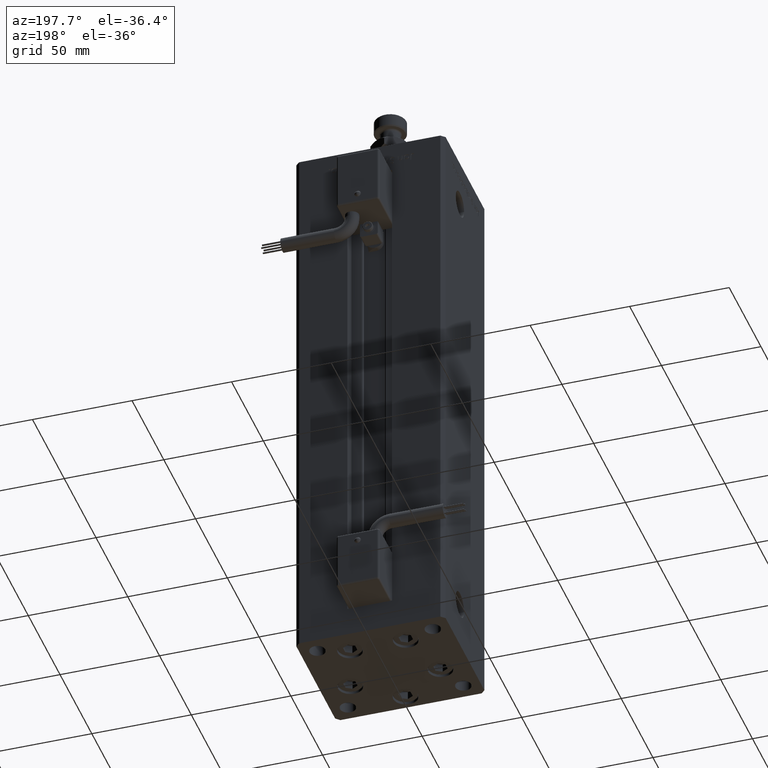
[diagram: clean part render]
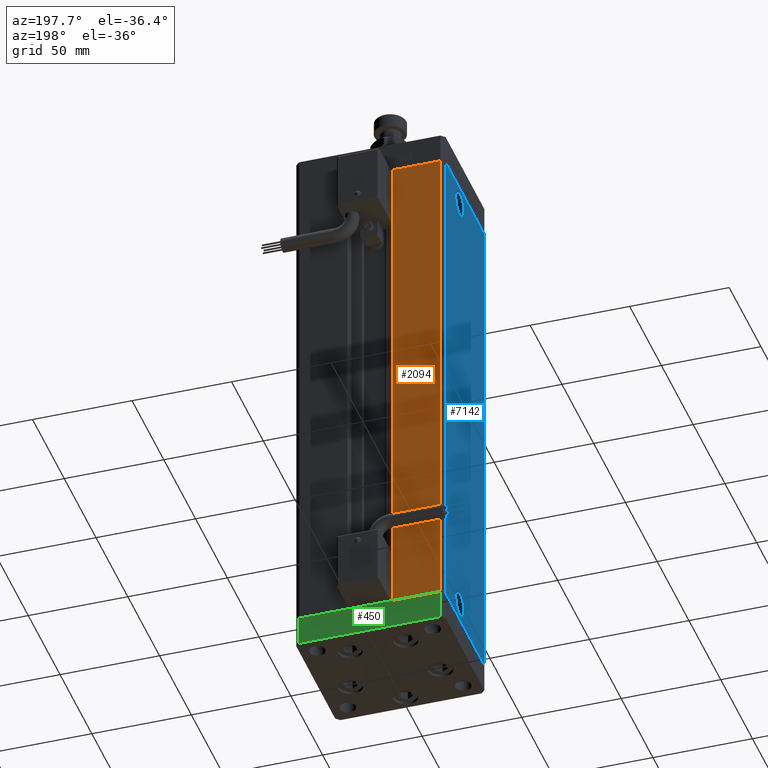
[diagram: same view with three faces highlighted in distinct colors, each labeled with its STEP entity id]
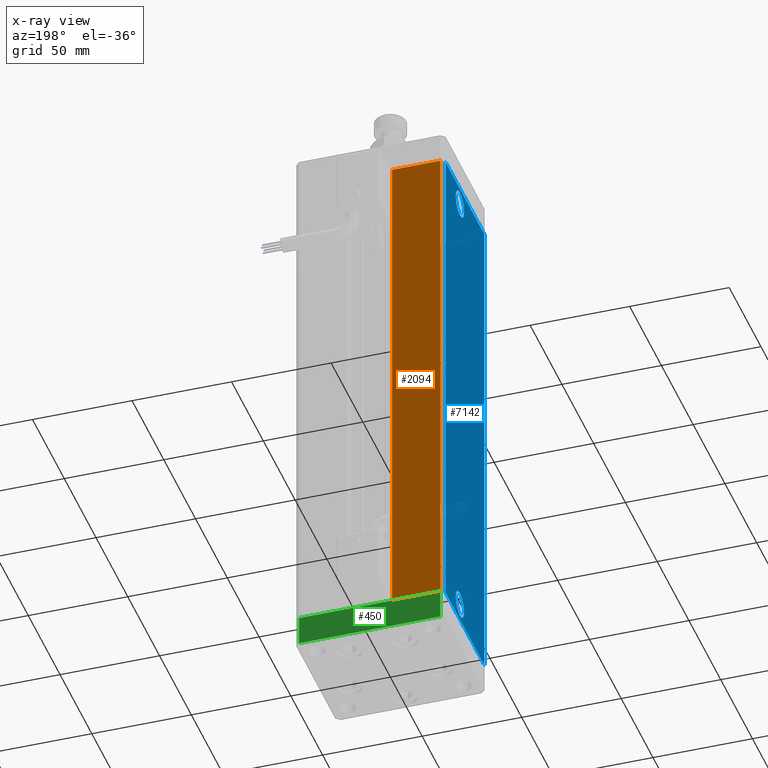
[diagram: x-ray of the same camera — body ghosted, the three highlighted faces saturated]
A machine part, auxiliary view with three faces highlighted in distinct colors.
The next image is the same camera in x-ray (body ghosted, the three faces saturated) — at least one of them is partly hidden behind the body in this view.
Their STEP definitions:

[orange] entity #2094 — the highlighted planar face has unit normal (0, -1, 0).
#1440 = CARTESIAN_POINT ( 'NONE',  ( -11.25000000000000178, 32.49999999999999289, 256.0000000000000000 ) ) ;
#2094 = ADVANCED_FACE ( 'NONE', ( #19256 ), #19542, .F. ) ;
#3200 = CARTESIAN_POINT ( 'NONE',  ( -35.50000000000000000, 32.49999999999999289, 256.0000000000000000 ) ) ;
#5956 = DIRECTION ( 'NONE',  ( -0.000000000000000000, -0.000000000000000000, -1.000000000000000000 ) ) ;
#6423 = VECTOR ( 'NONE', #22951, 1000.000000000000000 ) ;
#10554 = CARTESIAN_POINT ( 'NONE',  ( -35.50000000000000000, 32.49999999999999289, 256.0000000000000000 ) ) ;
#13209 = DIRECTION ( 'NONE',  ( -0.000000000000000000, -0.000000000000000000, 1.000000000000000000 ) ) ;
#15249 = CARTESIAN_POINT ( 'NONE',  ( -11.25000000000000178, 32.49999999999999289, 256.0000000000000000 ) ) ;
#15728 = EDGE_CURVE ( 'NONE', #21089, #41469, #41689, .T. ) ;
#15921 = EDGE_CURVE ( 'NONE', #50577, #41469, #45079, .T. ) ;
#18144 = ORIENTED_EDGE ( 'NONE', *, *, #21131, .T. ) ;
#19256 = FACE_OUTER_BOUND ( 'NONE', #53861, .T. ) ;
#19542 = PLANE ( 'NONE',  #25518 ) ;
#19828 = CARTESIAN_POINT ( 'NONE',  ( -11.25000000000000178, 32.49999999999999289, 0.000000000000000000 ) ) ;
#20140 = VECTOR ( 'NONE', #13209, 1000.000000000000000 ) ;
#21089 = VERTEX_POINT ( 'NONE', #48779 ) ;
#21131 = EDGE_CURVE ( 'NONE', #21089, #42439, #23764, .T. ) ;
#21182 = EDGE_CURVE ( 'NONE', #50577, #42439, #22627, .T. ) ;
#22185 = ORIENTED_EDGE ( 'NONE', *, *, #15728, .F. ) ;
#22627 = LINE ( 'NONE', #10554, #39511 ) ;
#22951 = DIRECTION ( 'NONE',  ( 1.000000000000000000, 0.000000000000000000, 0.000000000000000000 ) ) ;
#23764 = LINE ( 'NONE', #35858, #35043 ) ;
#25518 = AXIS2_PLACEMENT_3D ( 'NONE', #15249, #32781, #27334 ) ;
#27334 = DIRECTION ( 'NONE',  ( 0.000000000000000000, -0.000000000000000000, -1.000000000000000000 ) ) ;
#27555 = CARTESIAN_POINT ( 'NONE',  ( -35.50000000000000000, 32.49999999999999289, 0.000000000000000000 ) ) ;
#31281 = CARTESIAN_POINT ( 'NONE',  ( -11.25000000000000178, 32.49999999999999289, 256.0000000000000000 ) ) ;
#32781 = DIRECTION ( 'NONE',  ( 0.000000000000000000, -1.000000000000000000, 0.000000000000000000 ) ) ;
#35043 = VECTOR ( 'NONE', #50188, 1000.000000000000000 ) ;
#35858 = CARTESIAN_POINT ( 'NONE',  ( -11.25000000000000178, 32.49999999999999289, 0.000000000000000000 ) ) ;
#39511 = VECTOR ( 'NONE', #5956, 1000.000000000000000 ) ;
#41171 = ORIENTED_EDGE ( 'NONE', *, *, #21182, .F. ) ;
#41469 = VERTEX_POINT ( 'NONE', #1440 ) ;
#41689 = LINE ( 'NONE', #19828, #20140 ) ;
#42439 = VERTEX_POINT ( 'NONE', #27555 ) ;
#45079 = LINE ( 'NONE', #31281, #6423 ) ;
#46882 = ORIENTED_EDGE ( 'NONE', *, *, #15921, .T. ) ;
#48779 = CARTESIAN_POINT ( 'NONE',  ( -11.25000000000000178, 32.49999999999999289, 0.000000000000000000 ) ) ;
#50188 = DIRECTION ( 'NONE',  ( -1.000000000000000000, 0.000000000000000000, 0.000000000000000000 ) ) ;
#50577 = VERTEX_POINT ( 'NONE', #3200 ) ;
#53861 = EDGE_LOOP ( 'NONE', ( #46882, #22185, #18144, #41171 ) ) ;

[blue] entity #7142 — the highlighted planar face has unit normal (1, 0, 0).
#283 = VERTEX_POINT ( 'NONE', #27177 ) ;
#1412 = VERTEX_POINT ( 'NONE', #24355 ) ;
#6004 = DIRECTION ( 'NONE',  ( -2.275047181608927644E-16, 1.000000000000000000, 0.000000000000000000 ) ) ;
#6698 = CARTESIAN_POINT ( 'NONE',  ( -37.50000000000000000, 7.999999999999991118, 9.000000000000000000 ) ) ;
#7142 = ADVANCED_FACE ( 'NONE', ( #10601, #16036, #15750 ), #28414, .F. ) ;
#8335 = CARTESIAN_POINT ( 'NONE',  ( -37.50000000000000000, 7.999999999999991118, 247.0000000000000000 ) ) ;
#8548 = DIRECTION ( 'NONE',  ( 0.000000000000000000, -1.000000000000000000, 0.000000000000000000 ) ) ;
#10601 = FACE_BOUND ( 'NONE', #35789, .T. ) ;
#11441 = CARTESIAN_POINT ( 'NONE',  ( -37.50000000000000000, 7.999999999999991118, 247.0000000000000000 ) ) ;
#12119 = VECTOR ( 'NONE', #35371, 1000.000000000000000 ) ;
#15296 = LINE ( 'NONE', #23917, #20817 ) ;
#15750 = FACE_OUTER_BOUND ( 'NONE', #26509, .T. ) ;
#16036 = FACE_BOUND ( 'NONE', #22271, .T. ) ;
#16501 = VERTEX_POINT ( 'NONE', #44872 ) ;
#16649 = DIRECTION ( 'NONE',  ( 0.000000000000000000, -1.000000000000000000, 0.000000000000000000 ) ) ;
#16693 = CIRCLE ( 'NONE', #22225, 6.580000000000003624 ) ;
#18263 = DIRECTION ( 'NONE',  ( -1.000000000000000000, -2.275047181608927644E-16, 0.000000000000000000 ) ) ;
#19143 = VERTEX_POINT ( 'NONE', #22072 ) ;
#19226 = CARTESIAN_POINT ( 'NONE',  ( -37.50000000000000711, 30.50000000000000000, 0.000000000000000000 ) ) ;
#19688 = ORIENTED_EDGE ( 'NONE', *, *, #24877, .F. ) ;
#20098 = CARTESIAN_POINT ( 'NONE',  ( -37.49999999999999289, -30.50000000000000000, 256.0000000000000000 ) ) ;
#20279 = EDGE_CURVE ( 'NONE', #47698, #49827, #55170, .T. ) ;
#20817 = VECTOR ( 'NONE', #49492, 1000.000000000000000 ) ;
#20935 = EDGE_CURVE ( 'NONE', #25577, #283, #49703, .T. ) ;
#21163 = CIRCLE ( 'NONE', #48688, 6.580000000000044480 ) ;
#22072 = CARTESIAN_POINT ( 'NONE',  ( -37.50000000000000000, 14.58000000000003560, 247.0000000000000000 ) ) ;
#22225 = AXIS2_PLACEMENT_3D ( 'NONE', #6698, #24206, #50347 ) ;
#22271 = EDGE_LOOP ( 'NONE', ( #55339, #49060 ) ) ;
#22429 = LINE ( 'NONE', #48302, #12119 ) ;
#22586 = EDGE_CURVE ( 'NONE', #19143, #44809, #21163, .T. ) ;
#22890 = EDGE_CURVE ( 'NONE', #44809, #19143, #53270, .T. ) ;
#23917 = CARTESIAN_POINT ( 'NONE',  ( -37.50000000000000711, 30.50000000000000000, 256.0000000000000000 ) ) ;
#24206 = DIRECTION ( 'NONE',  ( -1.000000000000000000, -2.275047181608927644E-16, 0.000000000000000000 ) ) ;
#24355 = CARTESIAN_POINT ( 'NONE',  ( -37.50000000000000711, 30.50000000000000000, 256.0000000000000000 ) ) ;
#24694 = EDGE_CURVE ( 'NONE', #1412, #25577, #22429, .T. ) ;
#24706 = CARTESIAN_POINT ( 'NONE',  ( -37.50000000000000000, 1.419999999999988161, 9.000000000000000000 ) ) ;
#24877 = EDGE_CURVE ( 'NONE', #16501, #283, #50559, .T. ) ;
#25178 = CARTESIAN_POINT ( 'NONE',  ( -37.50000000000000000, 1.419999999999947304, 247.0000000000000000 ) ) ;
#25577 = VERTEX_POINT ( 'NONE', #36576 ) ;
#25845 = DIRECTION ( 'NONE',  ( -1.000000000000000000, -2.275047181608927644E-16, 0.000000000000000000 ) ) ;
#26509 = EDGE_LOOP ( 'NONE', ( #26816, #19688, #56195, #29703 ) ) ;
#26816 = ORIENTED_EDGE ( 'NONE', *, *, #20935, .T. ) ;
#27177 = CARTESIAN_POINT ( 'NONE',  ( -37.49999999999999289, -30.50000000000000000, 0.000000000000000000 ) ) ;
#28414 = PLANE ( 'NONE',  #32797 ) ;
#29471 = ORIENTED_EDGE ( 'NONE', *, *, #39031, .F. ) ;
#29703 = ORIENTED_EDGE ( 'NONE', *, *, #24694, .T. ) ;
#30405 = AXIS2_PLACEMENT_3D ( 'NONE', #47890, #18263, #8548 ) ;
#32182 = DIRECTION ( 'NONE',  ( 2.275047181608927644E-16, -1.000000000000000000, 0.000000000000000000 ) ) ;
#32797 = AXIS2_PLACEMENT_3D ( 'NONE', #45937, #50805, #6004 ) ;
#34394 = DIRECTION ( 'NONE',  ( -1.000000000000000000, -2.275047181608927644E-16, 0.000000000000000000 ) ) ;
#35371 = DIRECTION ( 'NONE',  ( -0.000000000000000000, -0.000000000000000000, -1.000000000000000000 ) ) ;
#35789 = EDGE_LOOP ( 'NONE', ( #36857, #29471 ) ) ;
#36576 = CARTESIAN_POINT ( 'NONE',  ( -37.50000000000000711, 30.50000000000000000, 0.000000000000000000 ) ) ;
#36857 = ORIENTED_EDGE ( 'NONE', *, *, #20279, .F. ) ;
#37715 = AXIS2_PLACEMENT_3D ( 'NONE', #11441, #34394, #51063 ) ;
#39031 = EDGE_CURVE ( 'NONE', #49827, #47698, #16693, .T. ) ;
#39597 = VECTOR ( 'NONE', #32182, 1000.000000000000000 ) ;
#41951 = DIRECTION ( 'NONE',  ( -0.000000000000000000, -0.000000000000000000, -1.000000000000000000 ) ) ;
#44809 = VERTEX_POINT ( 'NONE', #25178 ) ;
#44872 = CARTESIAN_POINT ( 'NONE',  ( -37.49999999999999289, -30.50000000000000000, 256.0000000000000000 ) ) ;
#45130 = VECTOR ( 'NONE', #41951, 1000.000000000000000 ) ;
#45937 = CARTESIAN_POINT ( 'NONE',  ( -37.50000000000000711, 30.50000000000000000, 256.0000000000000000 ) ) ;
#47698 = VERTEX_POINT ( 'NONE', #24706 ) ;
#47890 = CARTESIAN_POINT ( 'NONE',  ( -37.50000000000000000, 7.999999999999991118, 9.000000000000000000 ) ) ;
#48120 = CARTESIAN_POINT ( 'NONE',  ( -37.50000000000000000, 14.57999999999999652, 9.000000000000000000 ) ) ;
#48302 = CARTESIAN_POINT ( 'NONE',  ( -37.50000000000000711, 30.50000000000000000, 256.0000000000000000 ) ) ;
#48688 = AXIS2_PLACEMENT_3D ( 'NONE', #8335, #25845, #16649 ) ;
#49060 = ORIENTED_EDGE ( 'NONE', *, *, #22586, .F. ) ;
#49492 = DIRECTION ( 'NONE',  ( 2.275047181608927644E-16, -1.000000000000000000, 0.000000000000000000 ) ) ;
#49703 = LINE ( 'NONE', #19226, #39597 ) ;
#49827 = VERTEX_POINT ( 'NONE', #48120 ) ;
#50347 = DIRECTION ( 'NONE',  ( 0.000000000000000000, -1.000000000000000000, 0.000000000000000000 ) ) ;
#50559 = LINE ( 'NONE', #20098, #45130 ) ;
#50805 = DIRECTION ( 'NONE',  ( 1.000000000000000000, 2.275047181608927644E-16, -0.000000000000000000 ) ) ;
#51063 = DIRECTION ( 'NONE',  ( 0.000000000000000000, -1.000000000000000000, 0.000000000000000000 ) ) ;
#51353 = EDGE_CURVE ( 'NONE', #1412, #16501, #15296, .T. ) ;
#53270 = CIRCLE ( 'NONE', #37715, 6.580000000000044480 ) ;
#55170 = CIRCLE ( 'NONE', #30405, 6.580000000000003624 ) ;
#55339 = ORIENTED_EDGE ( 'NONE', *, *, #22890, .F. ) ;
#56195 = ORIENTED_EDGE ( 'NONE', *, *, #51353, .F. ) ;

[green] entity #450 — the highlighted planar face has unit normal (0, 1, 0).
#450 = ADVANCED_FACE ( 'NONE', ( #54716 ), #41239, .T. ) ;
#1005 = DIRECTION ( 'NONE',  ( -1.954618001100629052E-16, 1.000000000000000000, 0.000000000000000000 ) ) ;
#1232 = VERTEX_POINT ( 'NONE', #16653 ) ;
#2603 = VECTOR ( 'NONE', #28056, 1000.000000000000000 ) ;
#2993 = VECTOR ( 'NONE', #47321, 1000.000000000000000 ) ;
#3516 = ORIENTED_EDGE ( 'NONE', *, *, #55603, .F. ) ;
#10539 = DIRECTION ( 'NONE',  ( 0.000000000000000000, 0.000000000000000000, 1.000000000000000000 ) ) ;
#12842 = EDGE_CURVE ( 'NONE', #16037, #15841, #31516, .T. ) ;
#13059 = VERTEX_POINT ( 'NONE', #31170 ) ;
#14244 = CARTESIAN_POINT ( 'NONE',  ( 35.49999999999992184, 32.50000000000000711, -15.00000000000000000 ) ) ;
#14494 = ORIENTED_EDGE ( 'NONE', *, *, #27230, .T. ) ;
#15841 = VERTEX_POINT ( 'NONE', #25575 ) ;
#16037 = VERTEX_POINT ( 'NONE', #43601 ) ;
#16653 = CARTESIAN_POINT ( 'NONE',  ( 35.49999999999992184, 32.50000000000000711, 0.000000000000000000 ) ) ;
#18851 = LINE ( 'NONE', #32651, #46270 ) ;
#22561 = EDGE_LOOP ( 'NONE', ( #3516, #42269, #42018, #14494 ) ) ;
#23113 = CARTESIAN_POINT ( 'NONE',  ( 35.49999999999992184, 32.50000000000000711, 0.000000000000000000 ) ) ;
#25575 = CARTESIAN_POINT ( 'NONE',  ( -35.50000000000002842, 32.49999999999999289, -15.00000000000000000 ) ) ;
#27151 = DIRECTION ( 'NONE',  ( -1.000000000000000000, -1.954618001100629052E-16, 0.000000000000000000 ) ) ;
#27230 = EDGE_CURVE ( 'NONE', #15841, #13059, #43027, .T. ) ;
#27434 = LINE ( 'NONE', #23113, #42853 ) ;
#28056 = DIRECTION ( 'NONE',  ( -1.000000000000000000, -1.954618001100629052E-16, 0.000000000000000000 ) ) ;
#28309 = DIRECTION ( 'NONE',  ( -1.000000000000000000, -1.954618001100629052E-16, 0.000000000000000000 ) ) ;
#29810 = CARTESIAN_POINT ( 'NONE',  ( -35.50000000000002842, 32.49999999999999289, -15.00000000000000000 ) ) ;
#31170 = CARTESIAN_POINT ( 'NONE',  ( -35.50000000000002842, 32.49999999999999289, 0.000000000000000000 ) ) ;
#31516 = LINE ( 'NONE', #49045, #2603 ) ;
#32651 = CARTESIAN_POINT ( 'NONE',  ( 35.49999999999992184, 32.50000000000000711, -15.00000000000000000 ) ) ;
#41239 = PLANE ( 'NONE',  #43040 ) ;
#42018 = ORIENTED_EDGE ( 'NONE', *, *, #12842, .T. ) ;
#42269 = ORIENTED_EDGE ( 'NONE', *, *, #45064, .F. ) ;
#42853 = VECTOR ( 'NONE', #27151, 1000.000000000000000 ) ;
#43027 = LINE ( 'NONE', #29810, #2993 ) ;
#43040 = AXIS2_PLACEMENT_3D ( 'NONE', #14244, #1005, #28309 ) ;
#43601 = CARTESIAN_POINT ( 'NONE',  ( 35.49999999999992184, 32.50000000000000711, -15.00000000000000000 ) ) ;
#45064 = EDGE_CURVE ( 'NONE', #16037, #1232, #18851, .T. ) ;
#46270 = VECTOR ( 'NONE', #10539, 1000.000000000000000 ) ;
#47321 = DIRECTION ( 'NONE',  ( 0.000000000000000000, 0.000000000000000000, 1.000000000000000000 ) ) ;
#49045 = CARTESIAN_POINT ( 'NONE',  ( 35.49999999999992184, 32.50000000000000711, -15.00000000000000000 ) ) ;
#54716 = FACE_OUTER_BOUND ( 'NONE', #22561, .T. ) ;
#55603 = EDGE_CURVE ( 'NONE', #1232, #13059, #27434, .T. ) ;